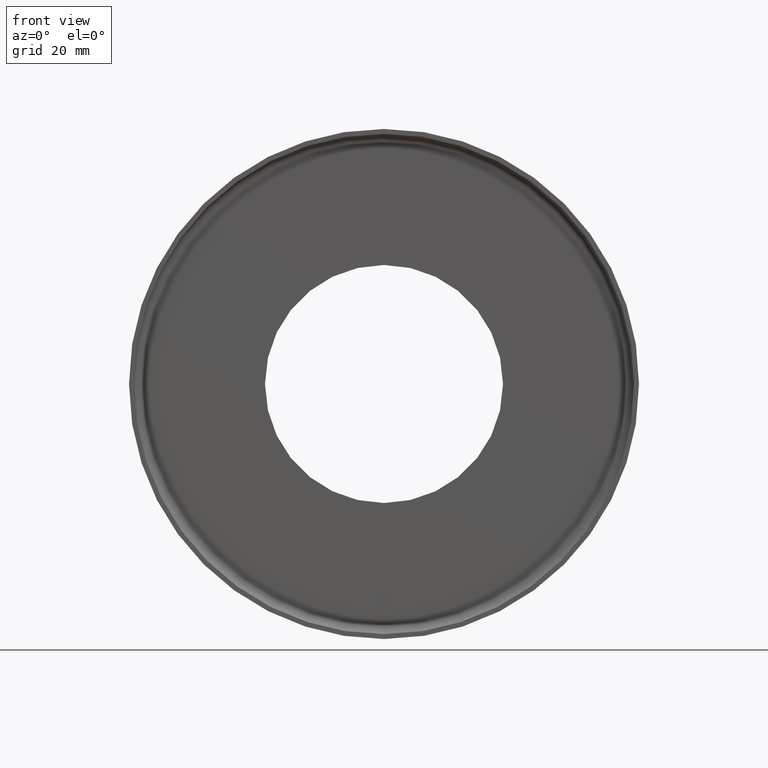
[diagram: clean part render]
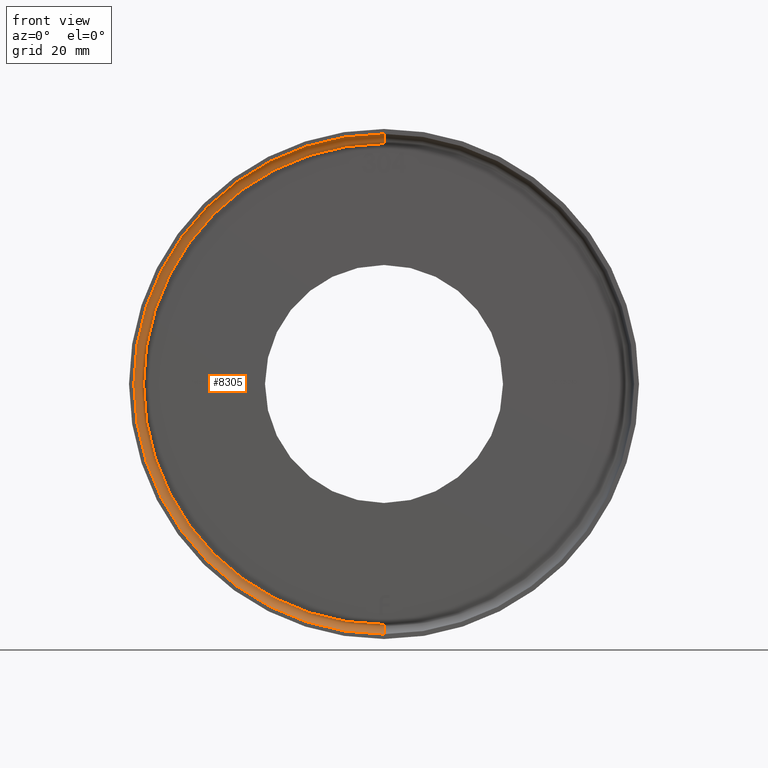
[diagram: same view with one face highlighted and labeled with its STEP entity id]
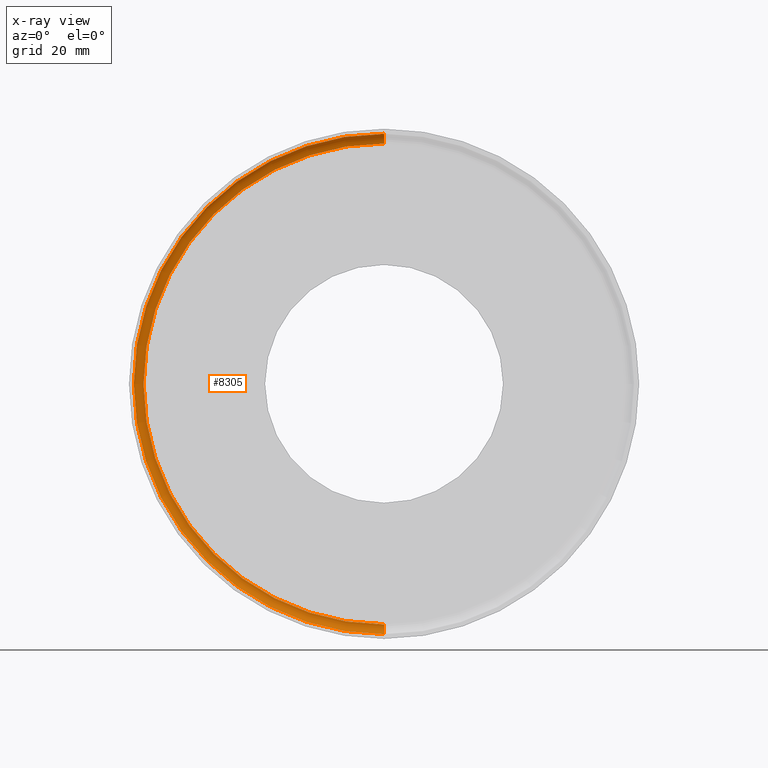
[diagram: x-ray of the same camera — body ghosted, the highlighted face saturated]
A machine part, front view. The second image highlights one B-rep face of the part: STEP entity #8305.
The next image is the same camera in x-ray: the body ghosted, the highlighted face saturated — about 0% of this face is hidden behind the body in this view.
In plain terms, the highlighted toroidal blend (fillet) surface has major radius 49.5 mm and minor (blend) radius 2 mm.
Its self-contained STEP definition (entity closure, byte-faithful):
#242 = CARTESIAN_POINT ( 'NONE',  ( 0.000000000000000000, 22.00000000000000355, 0.000000000000000000 ) ) ;
#560 = FACE_OUTER_BOUND ( 'NONE', #11764, .T. ) ;
#674 = CARTESIAN_POINT ( 'NONE',  ( 0.000000000000000000, 24.00000000000000000, 0.000000000000000000 ) ) ;
#786 = DIRECTION ( 'NONE',  ( 0.000000000000000000, 0.000000000000000000, -1.000000000000000000 ) ) ;
#1361 = CARTESIAN_POINT ( 'NONE',  ( 0.000000000000000000, 22.00000000000000355, -51.50000000000000711 ) ) ;
#1422 = CARTESIAN_POINT ( 'NONE',  ( 0.000000000000000000, 22.00000000000000355, -49.50000000000000000 ) ) ;
#1424 = CARTESIAN_POINT ( 'NONE',  ( 6.062001655779398511E-15, 22.00000000000000355, 49.50000000000000000 ) ) ;
#1525 = DIRECTION ( 'NONE',  ( -0.000000000000000000, -1.000000000000000000, -0.000000000000000000 ) ) ;
#2708 = CARTESIAN_POINT ( 'NONE',  ( 6.306931015608869596E-15, 22.00000000000000355, 51.50000000000000711 ) ) ;
#2813 = DIRECTION ( 'NONE',  ( 0.000000000000000000, 0.000000000000000000, -1.000000000000000000 ) ) ;
#2918 = AXIS2_PLACEMENT_3D ( 'NONE', #1422, #6487, #10335 ) ;
#3792 = AXIS2_PLACEMENT_3D ( 'NONE', #9229, #12773, #2813 ) ;
#4038 = CIRCLE ( 'NONE', #3792, 51.50000000000000711 ) ;
#4348 = CIRCLE ( 'NONE', #12000, 2.000000000000001776 ) ;
#4456 = DIRECTION ( 'NONE',  ( -0.000000000000000000, -1.000000000000000000, -0.000000000000000000 ) ) ;
#5939 = CIRCLE ( 'NONE', #15359, 49.50000000000000000 ) ;
#6228 = CARTESIAN_POINT ( 'NONE',  ( 6.184466335694133659E-15, 24.00000000000000000, 49.50000000000000000 ) ) ;
#6432 = DIRECTION ( 'NONE',  ( 1.000000000000000000, 0.000000000000000000, -1.224646799147353207E-16 ) ) ;
#6487 = DIRECTION ( 'NONE',  ( -1.000000000000000000, 0.000000000000000000, 0.000000000000000000 ) ) ;
#7276 = EDGE_CURVE ( 'NONE', #8206, #9510, #7809, .T. ) ;
#7809 = CIRCLE ( 'NONE', #2918, 2.000000000000001776 ) ;
#7828 = ORIENTED_EDGE ( 'NONE', *, *, #10105, .T. ) ;
#7971 = CARTESIAN_POINT ( 'NONE',  ( 0.000000000000000000, 24.00000000000000000, -49.50000000000000000 ) ) ;
#8206 = VERTEX_POINT ( 'NONE', #7971 ) ;
#8305 = ADVANCED_FACE ( 'NONE', ( #560 ), #9597, .F. ) ;
#8499 = VERTEX_POINT ( 'NONE', #2708 ) ;
#9229 = CARTESIAN_POINT ( 'NONE',  ( 0.000000000000000000, 22.00000000000000355, 0.000000000000000000 ) ) ;
#9510 = VERTEX_POINT ( 'NONE', #1361 ) ;
#9597 = TOROIDAL_SURFACE ( 'NONE', #13229, 49.50000000000000000, 2.000000000000000000 ) ;
#10105 = EDGE_CURVE ( 'NONE', #8499, #9510, #4038, .T. ) ;
#10335 = DIRECTION ( 'NONE',  ( 0.000000000000000000, 0.000000000000000000, 1.000000000000000000 ) ) ;
#11088 = ORIENTED_EDGE ( 'NONE', *, *, #16229, .T. ) ;
#11209 = ORIENTED_EDGE ( 'NONE', *, *, #7276, .F. ) ;
#11764 = EDGE_LOOP ( 'NONE', ( #15656, #11088, #7828, #11209 ) ) ;
#12000 = AXIS2_PLACEMENT_3D ( 'NONE', #1424, #6432, #12743 ) ;
#12743 = DIRECTION ( 'NONE',  ( -1.224646799147353454E-16, 0.000000000000000000, -1.000000000000000000 ) ) ;
#12773 = DIRECTION ( 'NONE',  ( -0.000000000000000000, -1.000000000000000000, -0.000000000000000000 ) ) ;
#13229 = AXIS2_PLACEMENT_3D ( 'NONE', #242, #1525, #14395 ) ;
#13923 = VERTEX_POINT ( 'NONE', #6228 ) ;
#14395 = DIRECTION ( 'NONE',  ( 0.000000000000000000, 0.000000000000000000, -1.000000000000000000 ) ) ;
#15359 = AXIS2_PLACEMENT_3D ( 'NONE', #674, #4456, #786 ) ;
#15656 = ORIENTED_EDGE ( 'NONE', *, *, #15818, .F. ) ;
#15818 = EDGE_CURVE ( 'NONE', #13923, #8206, #5939, .T. ) ;
#16229 = EDGE_CURVE ( 'NONE', #13923, #8499, #4348, .T. ) ;